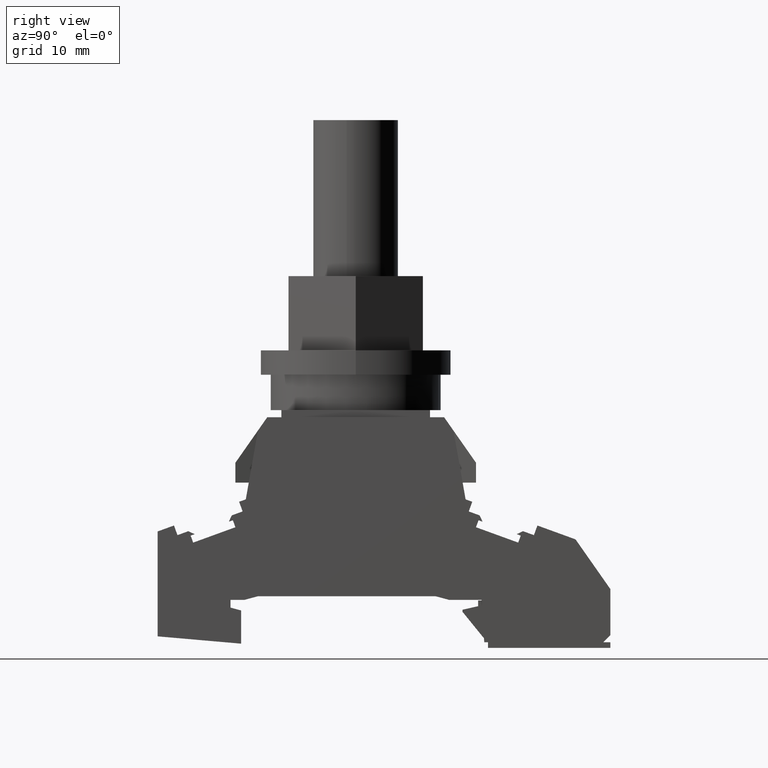
[diagram: clean part render]
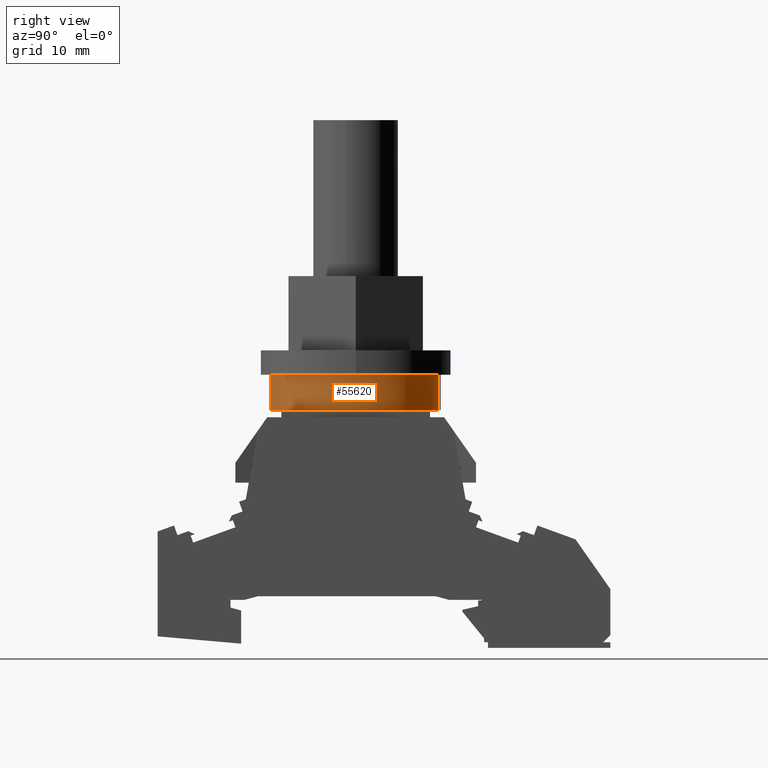
[diagram: same view with one face highlighted and labeled with its STEP entity id]
A machine part, right view. The second image highlights one B-rep face of the part: STEP entity #55620.
In plain terms, the highlighted cylindrical surface (partial cylindrical patch) has radius 12 mm, axis along (0, -0, 1).
Its self-contained STEP definition (entity closure, byte-faithful):
#49070=CARTESIAN_POINT('',(21.809475019408,17.5000000629414,
33.5999999999054));
#49080=VERTEX_POINT('',#49070);
#49110=CARTESIAN_POINT('',(16.0000000000263,28.0000000629024,
33.5999999999106));
#49120=DIRECTION('',(8.99058605341452E-13,-3.05311331771919E-16,1.));
#49130=DIRECTION('',(-0.236042002632342,-0.971742853327625,
2.11918909583947E-13));
#49140=AXIS2_PLACEMENT_3D('',#49110,#49120,#49130);
#49150=CIRCLE('',#49140,12.);
#49160=CARTESIAN_POINT('',(21.8094750192668,38.5000000629415,
33.5999999999054));
#49170=VERTEX_POINT('',#49160);
#49180=EDGE_CURVE('',#49080,#49170,#49150,.T.);
#50810=CARTESIAN_POINT('',(13.1674959684382,16.3390858229709,
33.5999999999132));
#50820=DIRECTION('',(8.99058605341452E-13,-3.05311331771919E-16,1.));
#50830=VECTOR('',#50820,1.);
#50840=LINE('',#50810,#50830);
#50850=CARTESIAN_POINT('',(13.1674959684382,16.3390858229709,
33.5999999999132));
#50860=VERTEX_POINT('',#50850);
#50870=CARTESIAN_POINT('',(13.1674959684427,16.3390858229709,
38.5999999999132));
#50880=VERTEX_POINT('',#50870);
#50890=EDGE_CURVE('',#50860,#50880,#50840,.T.);
#50910=CARTESIAN_POINT('',(16.0000000000263,28.0000000629024,
33.5999999999106));
#50920=DIRECTION('',(8.99058605341452E-13,-3.05311331771919E-16,1.));
#50930=DIRECTION('',(-0.236042002632342,-0.971742853327625,
2.11918909583947E-13));
#50940=AXIS2_PLACEMENT_3D('',#50910,#50920,#50930);
#50950=CIRCLE('',#50940,12.);
#50990=CARTESIAN_POINT('',(18.8325040316144,39.6609143028339,
33.5999999999081));
#51000=VERTEX_POINT('',#50990);
#51030=CARTESIAN_POINT('',(18.8325040316144,39.6609143028339,
33.5999999999081));
#51040=DIRECTION('',(8.99058605341452E-13,-3.05311331771919E-16,1.));
#51050=VECTOR('',#51040,1.);
#51060=LINE('',#51030,#51050);
#51070=CARTESIAN_POINT('',(18.8325040316189,39.6609143028339,
38.5999999999081));
#51080=VERTEX_POINT('',#51070);
#51090=EDGE_CURVE('',#51000,#51080,#51060,.T.);
#51110=CARTESIAN_POINT('',(16.0000000000309,28.0000000629024,
38.5999999999106));
#51120=DIRECTION('',(8.99058605341452E-13,-3.05311331771919E-16,1.));
#51130=DIRECTION('',(-0.236042002632342,-0.971742853327625,
2.11918909583947E-13));
#51140=AXIS2_PLACEMENT_3D('',#51110,#51120,#51130);
#51150=CIRCLE('',#51140,12.);
#51330=EDGE_CURVE('',#49170,#51000,#50950,.T.);
#51490=EDGE_CURVE('',#50860,#49080,#50950,.T.);
#51810=EDGE_CURVE('',#50880,#51080,#51150,.T.);
#55490=CARTESIAN_POINT('',(16.0000000000263,28.0000000629024,
33.5999999999106));
#55500=DIRECTION('',(8.99058605341452E-13,-3.05311331771919E-16,1.));
#55510=DIRECTION('',(-0.236042002632342,-0.971742853327625,
2.11918909583947E-13));
#55520=AXIS2_PLACEMENT_3D('',#55490,#55500,#55510);
#55530=CYLINDRICAL_SURFACE('',#55520,12.);
#55540=ORIENTED_EDGE('',*,*,#50890,.F.);
#55550=ORIENTED_EDGE('',*,*,#51810,.F.);
#55560=ORIENTED_EDGE('',*,*,#51090,.T.);
#55570=ORIENTED_EDGE('',*,*,#51330,.T.);
#55580=ORIENTED_EDGE('',*,*,#49180,.T.);
#55590=ORIENTED_EDGE('',*,*,#51490,.T.);
#55600=EDGE_LOOP('',(#55590,#55580,#55570,#55560,#55550,#55540));
#55610=FACE_OUTER_BOUND('',#55600,.T.);
#55620=ADVANCED_FACE('',(#55610),#55530,.T.);